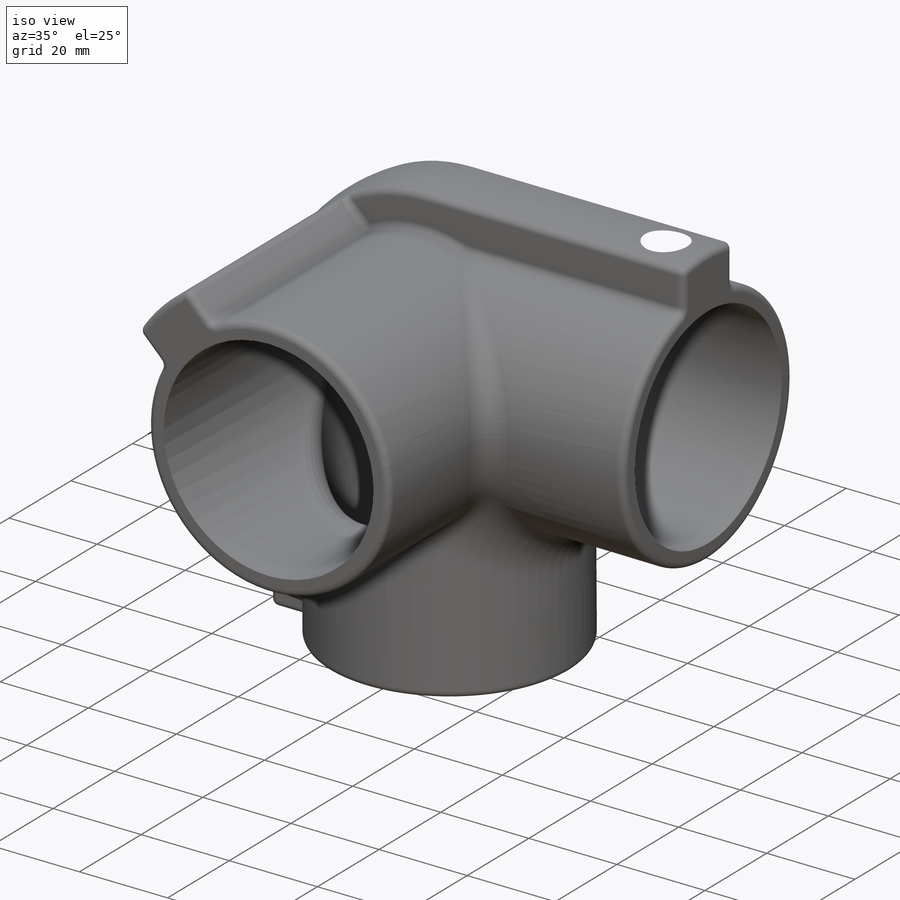
[diagram: iso view]
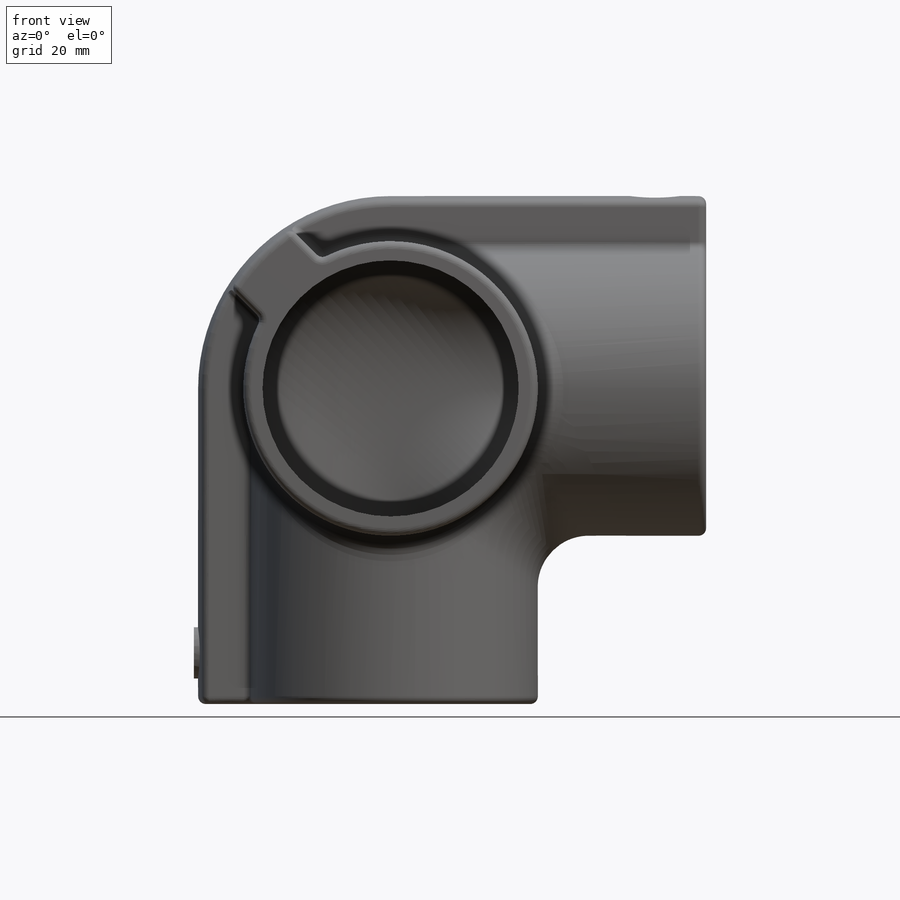
[diagram: front view]
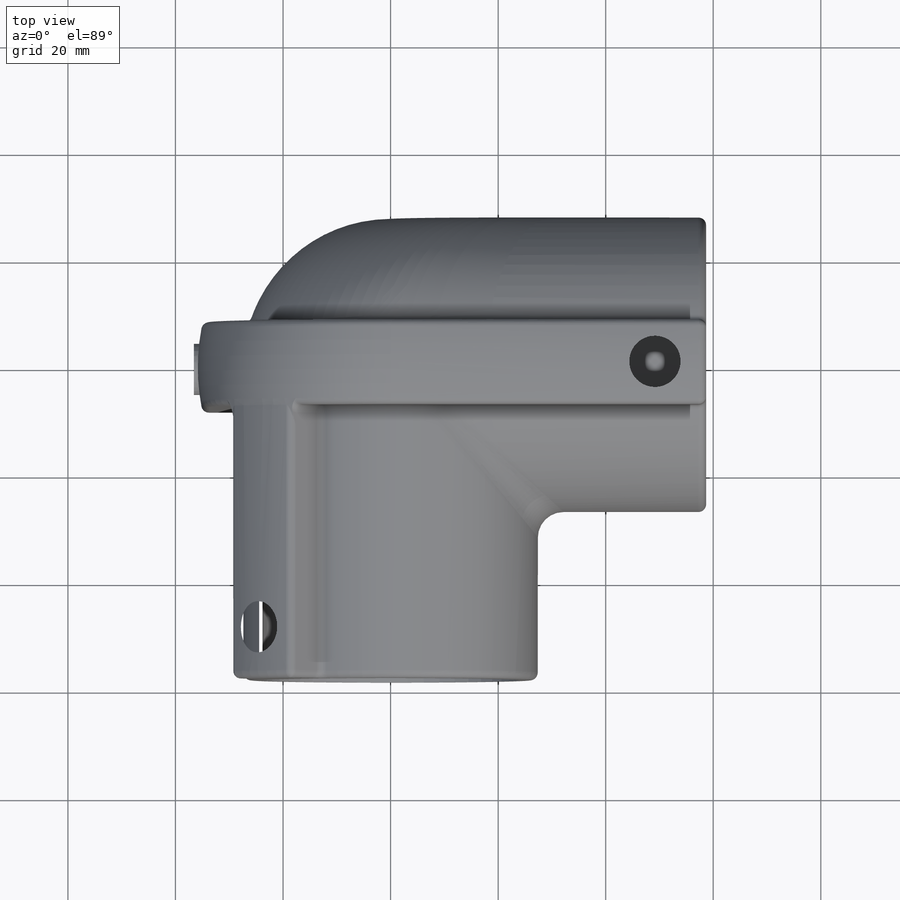
[diagram: top view]
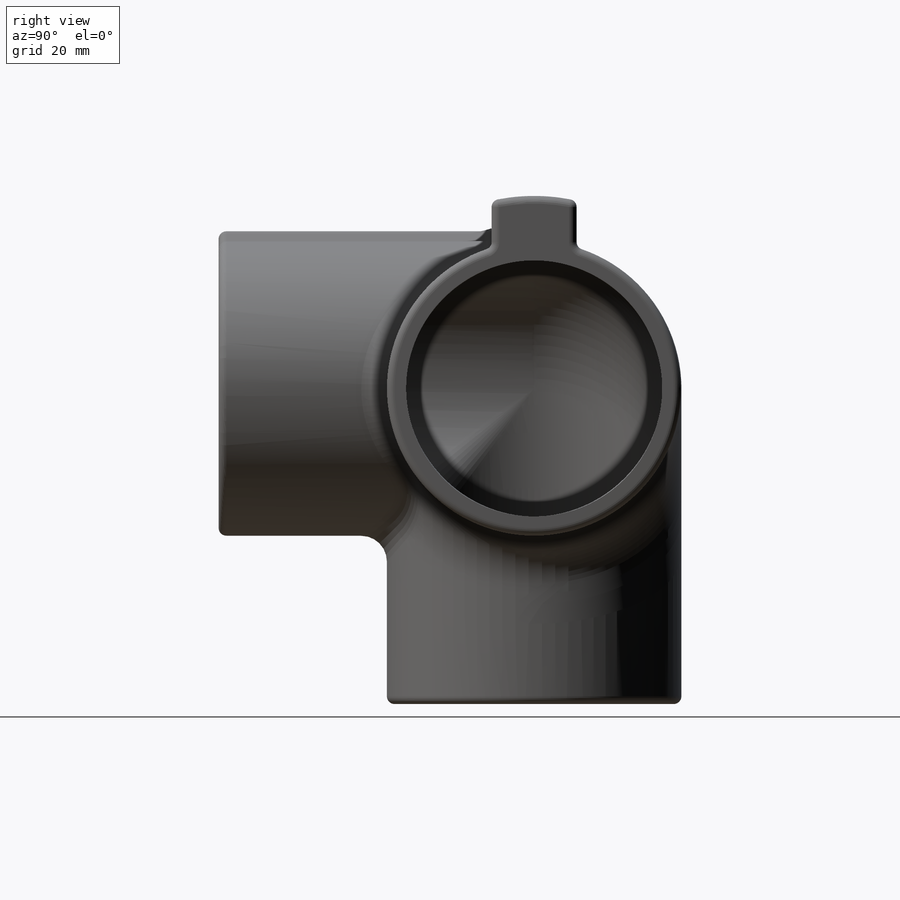
[diagram: right view]
SOLIDWORKS PART (.sldprt)
format: sldprt  version: not decoded by parser v0  size: 1,169,920 bytes
history: native  units: mm
features: sketch x22, plane x7, cut_extrude x6, fillet x5, extrude x4, chamfer x2, material x1, shell x1, sweep x1, pattern_circular x1 (+13 scaffold rows collapsed)
feature tree (63):
  scaffold x13  (default folders/planes/origin — collapsed)
  material  "3.3535 (EN-AW 5754)"
  sketch  "Sketch1"  dims[D=31.75mm B=58.674mm A=47.625mm D1=58.674mm C=94.488mm D2=47.625mm]
  plane  "Plane1"
  plane  "Plane2"
  sketch  "Sketch3"  dims[D1=~54.76875mm Hex Size=4.7625mm D2=15.8115mm D3=~8.712153mm]
  sketch  "Sketch2"  dims[D1=~54.76875mm D5=47.625mm D2=15.8115mm D3=~8.712153mm D4=~3.571875mm]
  sketch  "Sketch4"  dims[D1=9.525mm D2=2.54mm]
  sketch  "Sketch5"
  sketch  "Sketch6"
  plane  "Plane3"  Offset=58.674mm
  sketch  "Sketch7"  dims[c1.D1=70.104mm c1.D2=76.2mm c2.D2=45.0deg c2.D3=15.8115mm]
  extrude  "Extrude6"  [1 undecoded]
  fillet  "Fillet9"  Radius=4.7625mm
  shell  "Shell1"  Thickness=3.571875mm
  sketch  "Sketch12"  dims[D1=0.254mm]
  sketch  "Sketch13"
  sweep  "Sweep2"
  sketch  "Sketch14"  dims[c1.D2=76.2mm c2.D2=45.0deg c2.D3=15.8115mm c2.D1=0.762mm]
  extrude  "Extrude7"  [1 undecoded]
  fillet  "Fillet1"  Radius=1.42875mm
  fillet  "Fillet5"  Radius=1.42875mm
  fillet  "Fillet6"  Radius=1.42875mm
  fillet  "Fillet7"  Radius=1.42875mm
  plane  "Plane4"
  sketch  "Sketch15"  dims[D2=9.525mm D1=9.525mm]
  cut_extrude  "Extrude9"  Depth=1.016mm
  sketch  "Sketch16"  dims[D1=0.0mm]
  extrude  "Extrude10"  Depth=2.286mm
  chamfer  "Chamfer2"  Distance=0.508mm Angle=45deg
  sketch  "Sketch17"  dims[D1=4.7625mm]
  cut_extrude  "Extrude11"  Depth=3.302mm
  sketch  "Sketch18"
  cut_extrude  "Extrude12"  [1 undecoded]
  sketch  "Sketch20"
  plane  "Plane5"
  sketch  "Sketch21"
  pattern_circular  "CirPattern3"  Count=2 Angle=90deg
  plane  "Plane6"
  plane  "Plane7"
  sketch  "Sketch22"  dims[D2=9.525mm D1=9.525mm]
  cut_extrude  "Extrude13"  Depth=1.016mm
  sketch  "Sketch23"  dims[D1=0.0mm]
  extrude  "Extrude14"  Depth=2.286mm
  chamfer  "Chamfer3"  Distance=0.508mm Angle=45deg
  sketch  "Sketch24"  dims[D1=4.7625mm]
  cut_extrude  "Extrude15"  Depth=3.302mm
  sketch  "Sketch25"
  cut_extrude  "Extrude16"  [1 undecoded]
  sketch  "aline AA"  dims[D1=~24.029661mm]
  sketch  "aline BB"  dims[D1=~24.616624mm]
decode coverage: 30 of 42 modeling features carry decoded parameters
note: ~ marks probable driven/reference dimensions
note: 4 parameter values undecoded
summary: no parameter record found for 4 features
note: suppression state not decoded; provenance and decode notes live in map.json
